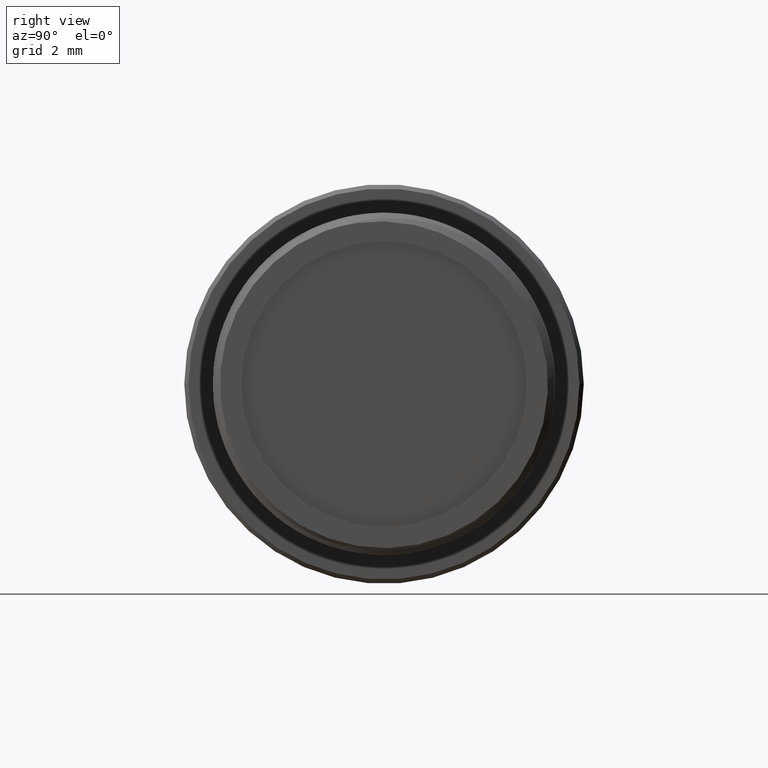
[diagram: clean part render]
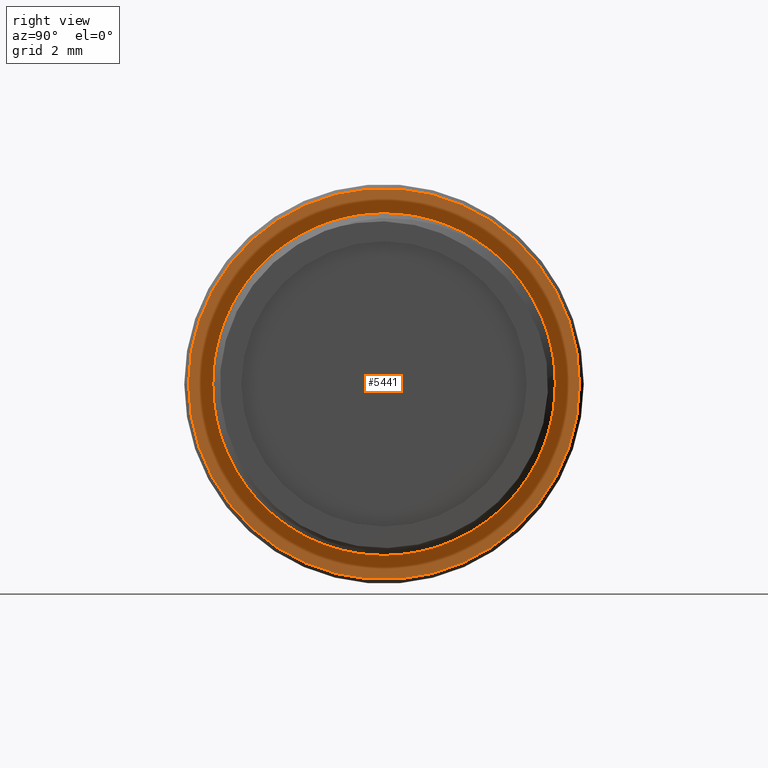
[diagram: same view with one face highlighted and labeled with its STEP entity id]
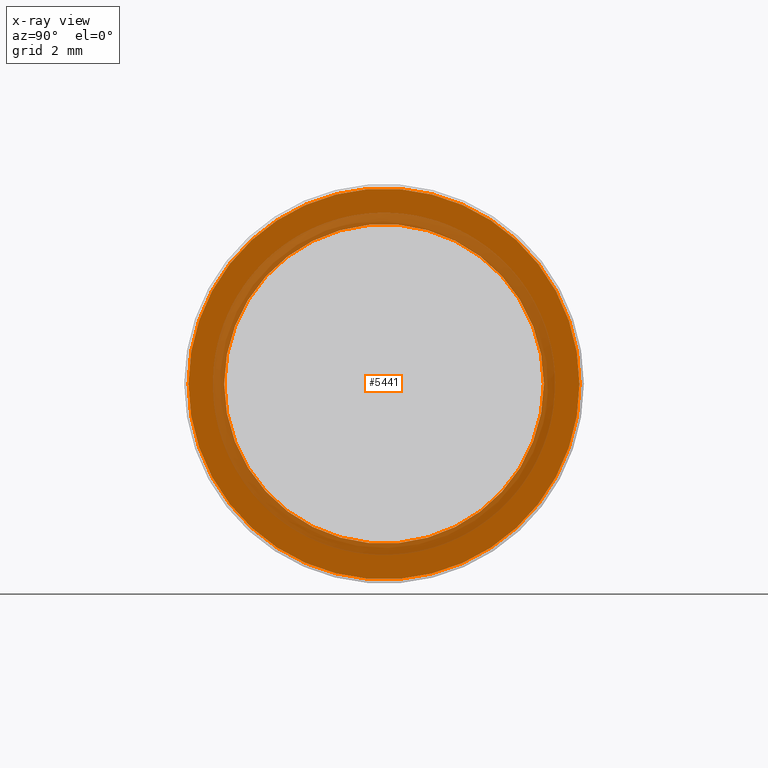
[diagram: x-ray of the same camera — body ghosted, the highlighted face saturated]
A machine part, right view. The second image highlights one B-rep face of the part: STEP entity #5441.
The next image is the same camera in x-ray: the body ghosted, the highlighted face saturated — about 31% of this face is hidden behind the body in this view.
In plain terms, the highlighted planar face has unit normal (-1, 0, 0).
Its self-contained STEP definition (entity closure, byte-faithful):
#2432=CARTESIAN_POINT('',(-1.212E1,0.E0,0.E0));
#2433=DIRECTION('',(1.E0,0.E0,0.E0));
#2434=DIRECTION('',(0.E0,1.E0,0.E0));
#2435=AXIS2_PLACEMENT_3D('',#2432,#2433,#2434);
#2437=CARTESIAN_POINT('',(-1.212E1,0.E0,0.E0));
#2438=DIRECTION('',(-1.E0,0.E0,0.E0));
#2439=DIRECTION('',(0.E0,1.E0,0.E0));
#2440=AXIS2_PLACEMENT_3D('',#2437,#2438,#2439);
#2442=CARTESIAN_POINT('',(-1.212E1,0.E0,0.E0));
#2443=DIRECTION('',(-1.E0,0.E0,0.E0));
#2444=DIRECTION('',(0.E0,1.E0,0.E0));
#2445=AXIS2_PLACEMENT_3D('',#2442,#2443,#2444);
#2451=CARTESIAN_POINT('',(-1.212E1,0.E0,0.E0));
#2452=DIRECTION('',(1.E0,0.E0,0.E0));
#2453=DIRECTION('',(0.E0,1.E0,0.E0));
#2454=AXIS2_PLACEMENT_3D('',#2451,#2452,#2453);
#2549=CARTESIAN_POINT('',(-1.212E1,5.6E0,0.E0));
#2551=VERTEX_POINT('',#2549);
#2552=CARTESIAN_POINT('',(-1.212E1,6.85E0,0.E0));
#2554=VERTEX_POINT('',#2552);
#2571=CARTESIAN_POINT('',(-1.212E1,-5.6E0,0.E0));
#2573=VERTEX_POINT('',#2571);
#2574=CARTESIAN_POINT('',(-1.212E1,-6.85E0,0.E0));
#2576=VERTEX_POINT('',#2574);
#5426=CARTESIAN_POINT('',(-1.212E1,0.E0,0.E0));
#5427=DIRECTION('',(-1.E0,0.E0,0.E0));
#5428=DIRECTION('',(0.E0,1.E0,0.E0));
#5429=AXIS2_PLACEMENT_3D('',#5426,#5427,#5428);
#5430=PLANE('',#5429);
#5432=ORIENTED_EDGE('',*,*,#5431,.T.);
#5434=ORIENTED_EDGE('',*,*,#5433,.F.);
#5435=EDGE_LOOP('',(#5432,#5434));
#5436=FACE_OUTER_BOUND('',#5435,.F.);
#5437=ORIENTED_EDGE('',*,*,#5408,.T.);
#5438=ORIENTED_EDGE('',*,*,#5419,.F.);
#5439=EDGE_LOOP('',(#5437,#5438));
#5440=FACE_BOUND('',#5439,.F.);
#5441=ADVANCED_FACE('',(#5436,#5440),#5430,.F.);
#2436=CIRCLE('',#2435,5.6E0);
#2441=CIRCLE('',#2440,5.6E0);
#2446=CIRCLE('',#2445,6.85E0);
#2455=CIRCLE('',#2454,6.85E0);
#5408=EDGE_CURVE('',#2551,#2573,#2436,.T.);
#5419=EDGE_CURVE('',#2551,#2573,#2441,.T.);
#5431=EDGE_CURVE('',#2554,#2576,#2446,.T.);
#5433=EDGE_CURVE('',#2554,#2576,#2455,.T.);